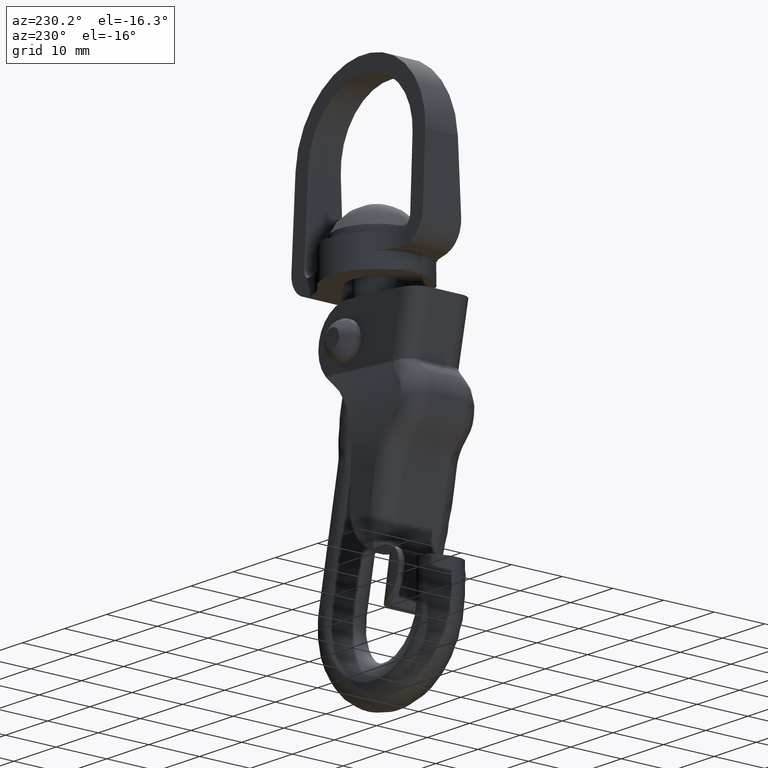
[diagram: clean part render]
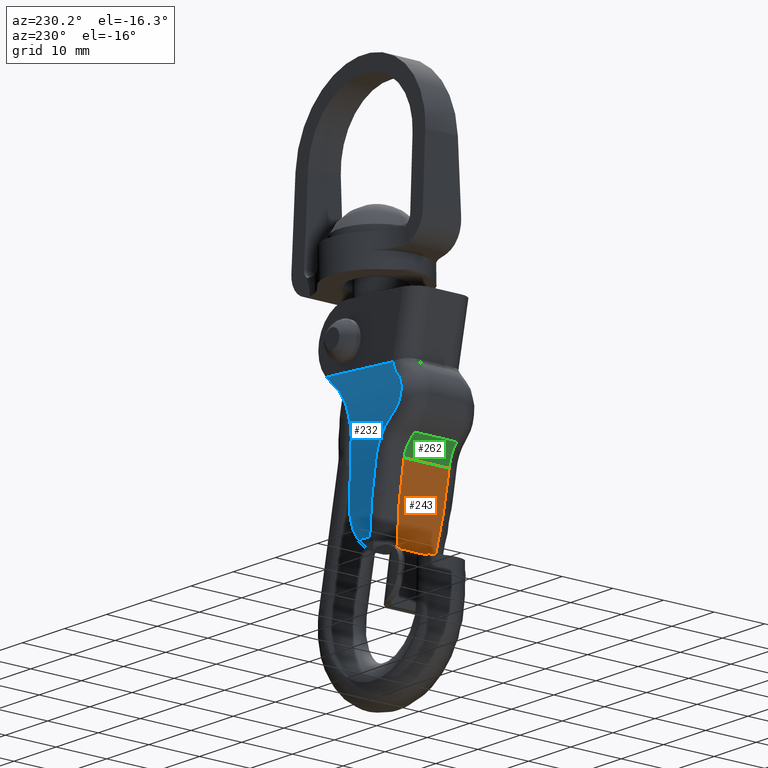
[diagram: same view with three faces highlighted in distinct colors, each labeled with its STEP entity id]
A machine part, auxiliary view with three faces highlighted in distinct colors.
Their STEP definitions:

[orange] entity #243 — the highlighted planar face has unit normal (0.9838, 0, 0.1795).
#243=ADVANCED_FACE('',(#1259),#1258,.F.);
#1258=PLANE('',#3210);
#1259=FACE_OUTER_BOUND('',#3211,.T.);
#3207=CARTESIAN_POINT('',(-1.33926840298E+01,-5.53585102927E+00,-1.84626691289E+01));
#3208=DIRECTION('',(9.93883734674E-01,-0.00000000000E+00,1.10431526075E-01));
#3209=DIRECTION('',(1.10431526075E-01,0.00000000000E+00,-9.93883734674E-01));
#3210=AXIS2_PLACEMENT_3D('',#3207,#3208,#3209);
#3211=EDGE_LOOP('',(#4421,#4422,#4423,#4424));
#4421=ORIENTED_EDGE('',*,*,#5106,.T.);
#4422=ORIENTED_EDGE('',*,*,#5036,.T.);
#4423=ORIENTED_EDGE('',*,*,#5107,.F.);
#4424=ORIENTED_EDGE('',*,*,#5108,.T.);
#5036=EDGE_CURVE('',#6873,#6866,#6874,.T.);
#5106=EDGE_CURVE('',#7349,#6873,#7350,.T.);
#5107=EDGE_CURVE('',#7356,#6866,#7357,.T.);
#5108=EDGE_CURVE('',#7356,#7349,#7363,.T.);
#6866=VERTEX_POINT('',#9564);
#6873=VERTEX_POINT('',#9569);
#6874=(BOUNDED_CURVE() B_SPLINE_CURVE(2,(#9570,#9571,#9572),.UNSPECIFIED.,.F.,.F.) B_SPLINE_CURVE_WITH_KNOTS((3,3),(1.44879891986E+00,1.59329488506E+00),.UNSPECIFIED.) CURVE() GEOMETRIC_REPRESENTATION_ITEM() RATIONAL_B_SPLINE_CURVE((1.00000000000E+00,9.97391249558E-01,1.00000000000E+00)) REPRESENTATION_ITEM('') );
#7349=VERTEX_POINT('',#10073);
#7350=LINE('',#10074,#10075);
#7356=VERTEX_POINT('',#10077);
#7357=LINE('',#10078,#10079);
#7363=(BOUNDED_CURVE() B_SPLINE_CURVE(2,(#10081,#10082,#10083),.UNSPECIFIED.,.F.,.F.) B_SPLINE_CURVE_WITH_KNOTS((3,3),(-1.59329488506E+00,-1.44879891986E+00),.UNSPECIFIED.) CURVE() GEOMETRIC_REPRESENTATION_ITEM() RATIONAL_B_SPLINE_CURVE((1.00000000000E+00,9.97391249558E-01,1.00000000000E+00)) REPRESENTATION_ITEM('') );
#9564=CARTESIAN_POINT('',(-1.32399392897E+01,-4.45798159360E+00,-1.98373717898E+01));
#9569=CARTESIAN_POINT('',(-1.17124918887E+01,-3.77351015019E+00,-3.35843983982E+01));
#9570=CARTESIAN_POINT('',(-1.17124918887E+01,-3.77351015019E+00,-3.35843983982E+01));
#9571=CARTESIAN_POINT('',(-1.24734634835E+01,-4.61320919106E+00,-2.67356540455E+01));
#9572=CARTESIAN_POINT('',(-1.32399392897E+01,-4.45798159360E+00,-1.98373717898E+01));
#10073=CARTESIAN_POINT('',(-1.17124918887E+01,3.77351015019E+00,-3.35843983982E+01));
#10074=CARTESIAN_POINT('',(-1.17124918887E+01,3.77351015019E+00,-3.35843983982E+01));
#10075=VECTOR('',#10076,7.54702030038E+00);
#10076=DIRECTION('',(0.00000000000E+00,-1.00000000000E+00,0.00000000000E+00));
#10077=CARTESIAN_POINT('',(-1.32399392897E+01,4.45798159360E+00,-1.98373717898E+01));
#10078=CARTESIAN_POINT('',(-1.32399392897E+01,4.45798159360E+00,-1.98373717898E+01));
#10079=VECTOR('',#10080,8.91596318720E+00);
#10080=DIRECTION('',(0.00000000000E+00,-1.00000000000E+00,0.00000000000E+00));
#10081=CARTESIAN_POINT('',(-1.32399392897E+01,4.45798159360E+00,-1.98373717898E+01));
#10082=CARTESIAN_POINT('',(-1.24734634835E+01,4.61320919106E+00,-2.67356540455E+01));
#10083=CARTESIAN_POINT('',(-1.17124918887E+01,3.77351015019E+00,-3.35843983982E+01));

[blue] entity #232 — the highlighted cylindrical surface (partial cylindrical patch) has radius 98.3386 mm, axis along (-0.9976, -0, -0.0698).
#232=ADVANCED_FACE('',(#1148),#1147,.T.);
#1147=CYLINDRICAL_SURFACE('',#3040,9.83385627829E+01);
#1148=FACE_OUTER_BOUND('',#3041,.T.);
#3037=CARTESIAN_POINT('',(-2.00000000000E+01,-9.08564527260E+01,-2.16508764665E+01));
#3038=DIRECTION('',(-1.00000000000E+00,-0.00000000000E+00,-0.00000000000E+00));
#3039=DIRECTION('',(-0.00000000000E+00,-0.00000000000E+00,1.00000000000E+00));
#3040=AXIS2_PLACEMENT_3D('',#3037,#3038,#3039);
#3041=EDGE_LOOP('',(#4366,#4367,#4368,#4369,#4370,#4371,#4372,#4373,#4374,#4375));
#4366=ORIENTED_EDGE('',*,*,#5059,.T.);
#4367=ORIENTED_EDGE('',*,*,#5060,.T.);
#4368=ORIENTED_EDGE('',*,*,#5061,.T.);
#4369=ORIENTED_EDGE('',*,*,#5062,.F.);
#4370=ORIENTED_EDGE('',*,*,#5063,.T.);
#4371=ORIENTED_EDGE('',*,*,#5064,.T.);
#4372=ORIENTED_EDGE('',*,*,#5065,.F.);
#4373=ORIENTED_EDGE('',*,*,#5066,.F.);
#4374=ORIENTED_EDGE('',*,*,#5067,.T.);
#4375=ORIENTED_EDGE('',*,*,#5068,.T.);
#5059=EDGE_CURVE('',#7028,#7029,#7030,.T.);
#5060=EDGE_CURVE('',#7029,#7036,#7037,.T.);
#5061=EDGE_CURVE('',#7036,#7043,#7044,.T.);
#5062=EDGE_CURVE('',#7050,#7043,#7051,.T.);
#5063=EDGE_CURVE('',#7050,#7057,#7058,.T.);
#5064=EDGE_CURVE('',#7057,#7064,#7065,.T.);
#5065=EDGE_CURVE('',#7071,#7064,#7072,.T.);
#5066=EDGE_CURVE('',#7078,#7071,#7079,.T.);
#5067=EDGE_CURVE('',#7078,#7085,#7086,.T.);
#5068=EDGE_CURVE('',#7085,#7028,#7092,.T.);
#7028=VERTEX_POINT('',#9758);
#7029=VERTEX_POINT('',#9759);
#7030=(BOUNDED_CURVE() B_SPLINE_CURVE(3,(#9760,#9761,#9762,#9763,#9764,#9765,#9766,#9767,#9768,#9769,#9770,#9771,#9772,#9773,#9774,#9775,#9776,#9777),.UNSPECIFIED.,.F.,.F.) B_SPLINE_CURVE_WITH_KNOTS((4,2,2,2,2,2,2,2,4),(7.35980840008E-18,9.33219614566E-04,1.86643922913E-03,2.79965884370E-03,3.73287845826E-03,4.66609807283E-03,5.59931768740E-03,6.53253730196E-03,7.46575691653E-03),.UNSPECIFIED.) CURVE() GEOMETRIC_REPRESENTATION_ITEM() RATIONAL_B_SPLINE_CURVE((1.00000000000E+00,1.00000000000E+00,1.00000000000E+00,1.00000000000E+00,1.00000000000E+00,1.00000000000E+00,1.00000000000E+00,1.00000000000E+00,1.00000000000E+00,1.00000000000E+00,1.00000000000E+00,1.00000000000E+00,1.00000000000E+00,1.00000000000E+00,1.00000000000E+00,1.00000000000E+00,1.00000000000E+00,1.00000000000E+00)) REPRESENTATION_ITEM('') );
#7036=VERTEX_POINT('',#9778);
#7037=(BOUNDED_CURVE() B_SPLINE_CURVE(3,(#9779,#9780,#9781,#9782,#9783,#9784,#9785,#9786),.UNSPECIFIED.,.F.,.F.) B_SPLINE_CURVE_WITH_KNOTS((4,2,2,4),(0.00000000000E+00,6.79578231446E-04,1.35915646289E-03,2.71831292578E-03),.UNSPECIFIED.) CURVE() GEOMETRIC_REPRESENTATION_ITEM() RATIONAL_B_SPLINE_CURVE((1.00000000000E+00,1.00000000000E+00,1.00000000000E+00,1.00000000000E+00,1.00000000000E+00,1.00000000000E+00,1.00000000000E+00,1.00000000000E+00)) REPRESENTATION_ITEM('') );
#7043=VERTEX_POINT('',#9787);
#7044=LINE('',#9788,#9789);
#7050=VERTEX_POINT('',#9791);
#7051=(BOUNDED_CURVE() B_SPLINE_CURVE(3,(#9792,#9793,#9794,#9795),.UNSPECIFIED.,.F.,.F.) B_SPLINE_CURVE_WITH_KNOTS((4,4),(0.00000000000E+00,1.45892270199E-03),.UNSPECIFIED.) CURVE() GEOMETRIC_REPRESENTATION_ITEM() RATIONAL_B_SPLINE_CURVE((1.00000000000E+00,1.00000000000E+00,1.00000000000E+00,1.00000000000E+00)) REPRESENTATION_ITEM('') );
#7057=VERTEX_POINT('',#9796);
#7058=(BOUNDED_CURVE() B_SPLINE_CURVE(3,(#9797,#9798,#9799,#9800,#9801,#9802,#9803,#9804,#9805,#9806,#9807,#9808,#9809,#9810,#9811,#9812),.UNSPECIFIED.,.F.,.F.) B_SPLINE_CURVE_WITH_KNOTS((4,2,2,2,2,2,2,4),(2.19469944455E-17,3.76839024051E-03,5.65258536077E-03,7.53678048102E-03,9.42097560128E-03,1.03630731614E-02,1.13051707215E-02,1.50735609620E-02),.UNSPECIFIED.) CURVE() GEOMETRIC_REPRESENTATION_ITEM() RATIONAL_B_SPLINE_CURVE((1.00000000000E+00,1.00000000000E+00,1.00000000000E+00,1.00000000000E+00,1.00000000000E+00,1.00000000000E+00,1.00000000000E+00,1.00000000000E+00,1.00000000000E+00,1.00000000000E+00,1.00000000000E+00,1.00000000000E+00,1.00000000000E+00,1.00000000000E+00,1.00000000000E+00,1.00000000000E+00)) REPRESENTATION_ITEM('') );
#7064=VERTEX_POINT('',#9813);
#7065=(BOUNDED_CURVE() B_SPLINE_CURVE(2,(#9814,#9815,#9816),.UNSPECIFIED.,.F.,.F.) B_SPLINE_CURVE_WITH_KNOTS((3,3),(1.53512451064E+00,1.62346856698E+00),.UNSPECIFIED.) CURVE() GEOMETRIC_REPRESENTATION_ITEM() RATIONAL_B_SPLINE_CURVE((1.00000000000E+00,9.99024574581E-01,1.00000000000E+00)) REPRESENTATION_ITEM('') );
#7071=VERTEX_POINT('',#9817);
#7072=(BOUNDED_CURVE() B_SPLINE_CURVE(3,(#9818,#9819,#9820,#9821,#9822,#9823),.UNSPECIFIED.,.F.,.F.) B_SPLINE_CURVE_WITH_KNOTS((4,2,4),(0.00000000000E+00,2.82610905719E-03,5.65221811437E-03),.UNSPECIFIED.) CURVE() GEOMETRIC_REPRESENTATION_ITEM() RATIONAL_B_SPLINE_CURVE((1.00000000000E+00,1.00000000000E+00,1.00000000000E+00,1.00000000000E+00,1.00000000000E+00,1.00000000000E+00)) REPRESENTATION_ITEM('') );
#7078=VERTEX_POINT('',#9824);
#7079=LINE('',#9825,#9826);
#7085=VERTEX_POINT('',#9828);
#7086=(BOUNDED_CURVE() B_SPLINE_CURVE(2,(#9829,#9830,#9831),.UNSPECIFIED.,.F.,.F.) B_SPLINE_CURVE_WITH_KNOTS((3,3),(1.46510165804E+00,1.59329488506E+00),.UNSPECIFIED.) CURVE() GEOMETRIC_REPRESENTATION_ITEM() RATIONAL_B_SPLINE_CURVE((1.00000000000E+00,9.97946515253E-01,1.00000000000E+00)) REPRESENTATION_ITEM('') );
#7092=(BOUNDED_CURVE() B_SPLINE_CURVE(3,(#9832,#9833,#9834,#9835,#9836,#9837,#9838,#9839,#9840,#9841,#9842,#9843),.UNSPECIFIED.,.F.,.F.) B_SPLINE_CURVE_WITH_KNOTS((4,2,2,2,2,4),(3.46944695195E-18,1.69884318975E-03,3.39768637950E-03,4.24710797437E-03,5.09652956924E-03,6.79537275899E-03),.UNSPECIFIED.) CURVE() GEOMETRIC_REPRESENTATION_ITEM() RATIONAL_B_SPLINE_CURVE((1.00000000000E+00,1.00000000000E+00,1.00000000000E+00,1.00000000000E+00,1.00000000000E+00,1.00000000000E+00,1.00000000000E+00,1.00000000000E+00,1.00000000000E+00,1.00000000000E+00,1.00000000000E+00,1.00000000000E+00)) REPRESENTATION_ITEM('') );
#9758=CARTESIAN_POINT('',(-1.32568111381E+01,7.14999903297E+00,-1.35757081200E+01));
#9759=CARTESIAN_POINT('',(-1.30794218449E+01,6.39982852946E+00,-7.10135116275E+00));
#9760=CARTESIAN_POINT('',(-1.32568111381E+01,7.14999903297E+00,-1.35757081200E+01));
#9761=CARTESIAN_POINT('',(-1.34892987140E+01,7.13299589238E+00,-1.33693449328E+01));
#9762=CARTESIAN_POINT('',(-1.36969880729E+01,7.11319459328E+00,-1.31371399317E+01));
#9763=CARTESIAN_POINT('',(-1.40529316073E+01,7.06861300105E+00,-1.26388285305E+01));
#9764=CARTESIAN_POINT('',(-1.42040762753E+01,7.04349931282E+00,-1.23689665981E+01));
#9765=CARTESIAN_POINT('',(-1.44450468499E+01,6.98794742940E+00,-1.18006065090E+01));
#9766=CARTESIAN_POINT('',(-1.45330019229E+01,6.95808880607E+00,-1.15078998580E+01));
#9767=CARTESIAN_POINT('',(-1.46461089887E+01,6.89381009427E+00,-1.09060810670E+01));
#9768=CARTESIAN_POINT('',(-1.46704387340E+01,6.85916378999E+00,-1.05953107683E+01));
#9769=CARTESIAN_POINT('',(-1.46530522226E+01,6.78820673116E+00,-9.98521216893E+00));
#9770=CARTESIAN_POINT('',(-1.46121282071E+01,6.75143446700E+00,-9.68156829700E+00));
#9771=CARTESIAN_POINT('',(-1.44641551054E+01,6.67614316218E+00,-9.08279309429E+00));
#9772=CARTESIAN_POINT('',(-1.43594383237E+01,6.63871946669E+00,-8.79627775084E+00));
#9773=CARTESIAN_POINT('',(-1.40895436257E+01,6.56492777903E+00,-8.24849124907E+00));
#9774=CARTESIAN_POINT('',(-1.39221288116E+01,6.52827575982E+00,-7.98539581125E+00));
#9775=CARTESIAN_POINT('',(-1.35390858465E+01,6.46030960588E+00,-7.50950195636E+00));
#9776=CARTESIAN_POINT('',(-1.33225983659E+01,6.42859679124E+00,-7.29365256778E+00));
#9777=CARTESIAN_POINT('',(-1.30794218449E+01,6.39982852946E+00,-7.10135116275E+00));
#9778=CARTESIAN_POINT('',(-1.16142213785E+01,6.04231554477E+00,-4.88479052455E+00));
#9779=CARTESIAN_POINT('',(-1.30794218449E+01,6.39982852946E+00,-7.10135116275E+00));
#9780=CARTESIAN_POINT('',(-1.29004825822E+01,6.37865966196E+00,-6.95984789799E+00));
#9781=CARTESIAN_POINT('',(-1.27354657477E+01,6.35527964343E+00,-6.80566546123E+00));
#9782=CARTESIAN_POINT('',(-1.24318138670E+01,6.30394761525E+00,-6.47333366193E+00));
#9783=CARTESIAN_POINT('',(-1.22925094517E+01,6.27582629344E+00,-6.29412025258E+00));
#9784=CARTESIAN_POINT('',(-1.19197032715E+01,6.18502344188E+00,-5.72694892836E+00));
#9785=CARTESIAN_POINT('',(-1.17355772977E+01,6.11759807030E+00,-5.31988217450E+00));
#9786=CARTESIAN_POINT('',(-1.16142213785E+01,6.04231554477E+00,-4.88479052455E+00));
#9787=CARTESIAN_POINT('',(4.44305484675E+00,6.04231554477E+00,-4.88479052455E+00));
#9788=CARTESIAN_POINT('',(-1.16142213785E+01,6.04231554477E+00,-4.88479052455E+00));
#9789=VECTOR('',#9790,1.60572762252E+01);
#9790=DIRECTION('',(1.00000000000E+00,0.00000000000E+00,0.00000000000E+00));
#9791=CARTESIAN_POINT('',(3.26599291079E+00,6.18623158464E+00,-5.73892020738E+00));
#9792=CARTESIAN_POINT('',(3.26599291079E+00,6.18623158464E+00,-5.73892020738E+00));
#9793=CARTESIAN_POINT('',(3.69340577094E+00,6.14634807099E+00,-5.49568152819E+00));
#9794=CARTESIAN_POINT('',(4.08521909087E+00,6.09863168680E+00,-5.21026689483E+00));
#9795=CARTESIAN_POINT('',(4.44305484675E+00,6.04231554477E+00,-4.88479052455E+00));
#9796=CARTESIAN_POINT('',(-4.08351289218E+00,7.41954983936E+00,-1.81437052446E+01));
#9797=CARTESIAN_POINT('',(3.26599291079E+00,6.18623158464E+00,-5.73892020738E+00));
#9798=CARTESIAN_POINT('',(2.16209882213E+00,6.28924012521E+00,-6.36714122067E+00));
#9799=CARTESIAN_POINT('',(1.16457753165E+00,6.40710784974E+00,-7.12292985484E+00));
#9800=CARTESIAN_POINT('',(-1.78741680477E-01,6.59197511020E+00,-8.44201686159E+00));
#9801=CARTESIAN_POINT('',(-6.03309016630E-01,6.65541982281E+00,-8.91678546239E+00));
#9802=CARTESIAN_POINT('',(-1.37949899913E+00,6.77973136925E+00,-9.90788208712E+00));
#9803=CARTESIAN_POINT('',(-1.73264094116E+00,6.84073427738E+00,-1.04247738006E+01));
#9804=CARTESIAN_POINT('',(-2.37048549911E+00,6.95835819379E+00,-1.15005811917E+01));
#9805=CARTESIAN_POINT('',(-2.65519090386E+00,7.01498521464E+00,-1.20594945176E+01));
#9806=CARTESIAN_POINT('',(-3.02933115391E+00,7.09513316688E+00,-1.29305116926E+01));
#9807=CARTESIAN_POINT('',(-3.14536721242E+00,7.12109856235E+00,-1.32270080344E+01));
#9808=CARTESIAN_POINT('',(-3.35619673748E+00,7.17045499197E+00,-1.38222444613E+01));
#9809=CARTESIAN_POINT('',(-3.45145912921E+00,7.19394162752E+00,-1.41219552645E+01));
#9810=CARTESIAN_POINT('',(-3.87804239223E+00,7.30513006988E+00,-1.56307844865E+01));
#9811=CARTESIAN_POINT('',(-4.06272406464E+00,7.37410308995E+00,-1.68702216936E+01));
#9812=CARTESIAN_POINT('',(-4.08351289218E+00,7.41954983936E+00,-1.81437052446E+01));
#9813=CARTESIAN_POINT('',(-4.22528177603E+00,7.34572806463E+00,-2.68281941283E+01));
#9814=CARTESIAN_POINT('',(-4.08351289218E+00,7.41954983936E+00,-1.81437052446E+01));
#9815=CARTESIAN_POINT('',(-4.15442396716E+00,7.57456954165E+00,-2.24875811764E+01));
#9816=CARTESIAN_POINT('',(-4.22528177603E+00,7.34572806463E+00,-2.68281941283E+01));
#9817=CARTESIAN_POINT('',(-6.17747107670E+00,6.93333333333E+00,-3.20253968254E+01));
#9818=CARTESIAN_POINT('',(-6.17747107670E+00,6.93333333333E+00,-3.20253968254E+01));
#9819=CARTESIAN_POINT('',(-5.56220561664E+00,7.01046635818E+00,-3.12983442257E+01));
#9820=CARTESIAN_POINT('',(-5.08619996870E+00,7.08837543748E+00,-3.04873388137E+01));
#9821=CARTESIAN_POINT('',(-4.41660215823E+00,7.23286032276E+00,-2.87048892541E+01));
#9822=CARTESIAN_POINT('',(-4.24085823984E+00,7.29542251548E+00,-2.77823783131E+01));
#9823=CARTESIAN_POINT('',(-4.22528177603E+00,7.34572806463E+00,-2.68281941283E+01));
#9824=CARTESIAN_POINT('',(-8.90241856847E+00,6.93333333333E+00,-3.20253968254E+01));
#9825=CARTESIAN_POINT('',(-8.90241856847E+00,6.93333333333E+00,-3.20253968254E+01));
#9826=VECTOR('',#9827,2.72494749178E+00);
#9827=DIRECTION('',(1.00000000000E+00,0.00000000000E+00,0.00000000000E+00));
#9828=CARTESIAN_POINT('',(-1.02582880857E+01,7.45722234794E+00,-1.94385872308E+01));
#9829=CARTESIAN_POINT('',(-8.90241856847E+00,6.93333333333E+00,-3.20253968254E+01));
#9830=CARTESIAN_POINT('',(-9.57854222913E+00,7.59921710528E+00,-2.57488048147E+01));
#9831=CARTESIAN_POINT('',(-1.02582880857E+01,7.45722234794E+00,-1.94385872308E+01));
#9832=CARTESIAN_POINT('',(-1.02582880857E+01,7.45722234794E+00,-1.94385872308E+01));
#9833=CARTESIAN_POINT('',(-1.03189622270E+01,7.44454789043E+00,-1.88753369663E+01));
#9834=CARTESIAN_POINT('',(-1.04312853452E+01,7.42709902920E+00,-1.83185615461E+01));
#9835=CARTESIAN_POINT('',(-1.07503112963E+01,7.38488098219E+00,-1.72461949137E+01));
#9836=CARTESIAN_POINT('',(-1.09571224598E+01,7.36005144561E+00,-1.67271064566E+01));
#9837=CARTESIAN_POINT('',(-1.13404985059E+01,7.31848680803E+00,-1.59748526958E+01));
#9838=CARTESIAN_POINT('',(-1.14810121301E+01,7.30387494657E+00,-1.57280783115E+01));
#9839=CARTESIAN_POINT('',(-1.17812527554E+01,7.27408573648E+00,-1.52534638774E+01));
#9840=CARTESIAN_POINT('',(-1.19415539015E+01,7.25884258801E+00,-1.50243510064E+01));
#9841=CARTESIAN_POINT('',(-1.24526960322E+01,7.21256168207E+00,-1.43613168551E+01));
#9842=CARTESIAN_POINT('',(-1.28334837371E+01,7.18095937692E+00,-1.39514666586E+01));
#9843=CARTESIAN_POINT('',(-1.32568111381E+01,7.14999903297E+00,-1.35757081200E+01));

[green] entity #262 — the highlighted cylindrical surface (partial cylindrical patch) has radius 5.7778 mm, axis along (0, 1, 0).
#262=ADVANCED_FACE('',(#1451),#1450,.F.);
#1450=CYLINDRICAL_SURFACE('',#3373,5.77777777778E+00);
#1451=FACE_OUTER_BOUND('',#3374,.T.);
#3370=CARTESIAN_POINT('',(-1.89823786456E+01,1.00000000000E+01,-2.04754206071E+01));
#3371=DIRECTION('',(-0.00000000000E+00,1.00000000000E+00,0.00000000000E+00));
#3372=DIRECTION('',(-0.00000000000E+00,-0.00000000000E+00,1.00000000000E+00));
#3373=AXIS2_PLACEMENT_3D('',#3370,#3371,#3372);
#3374=EDGE_LOOP('',(#4532,#4533,#4534,#4535));
#4532=ORIENTED_EDGE('',*,*,#5107,.T.);
#4533=ORIENTED_EDGE('',*,*,#5158,.T.);
#4534=ORIENTED_EDGE('',*,*,#5159,.F.);
#4535=ORIENTED_EDGE('',*,*,#5160,.T.);
#5107=EDGE_CURVE('',#7356,#6866,#7357,.T.);
#5158=EDGE_CURVE('',#6866,#7688,#7689,.T.);
#5159=EDGE_CURVE('',#7695,#7688,#7696,.T.);
#5160=EDGE_CURVE('',#7695,#7356,#7702,.T.);
#6866=VERTEX_POINT('',#9564);
#7356=VERTEX_POINT('',#10077);
#7357=LINE('',#10078,#10079);
#7688=VERTEX_POINT('',#10328);
#7689=(BOUNDED_CURVE() B_SPLINE_CURVE(3,(#10329,#10330,#10331,#10332,#10333,#10334,#10335,#10336,#10337,#10338,#10339,#10340),.UNSPECIFIED.,.F.,.F.) B_SPLINE_CURVE_WITH_KNOTS((4,2,2,2,2,4),(7.15244812269E-18,1.07916453611E-03,1.61874680417E-03,2.15832907222E-03,3.23749360834E-03,4.31665814445E-03),.UNSPECIFIED.) CURVE() GEOMETRIC_REPRESENTATION_ITEM() RATIONAL_B_SPLINE_CURVE((1.00000000000E+00,1.00000000000E+00,1.00000000000E+00,1.00000000000E+00,1.00000000000E+00,1.00000000000E+00,1.00000000000E+00,1.00000000000E+00,1.00000000000E+00,1.00000000000E+00,1.00000000000E+00,1.00000000000E+00)) REPRESENTATION_ITEM('') );
#7695=VERTEX_POINT('',#10341);
#7696=LINE('',#10342,#10343);
#7702=(BOUNDED_CURVE() B_SPLINE_CURVE(3,(#10345,#10346,#10347,#10348,#10349,#10350,#10351,#10352,#10353,#10354,#10355,#10356),.UNSPECIFIED.,.F.,.F.) B_SPLINE_CURVE_WITH_KNOTS((4,2,2,2,2,4),(3.87895961445E-18,1.07931246952E-03,1.61896870428E-03,2.15862493904E-03,3.23793740857E-03,4.31724987809E-03),.UNSPECIFIED.) CURVE() GEOMETRIC_REPRESENTATION_ITEM() RATIONAL_B_SPLINE_CURVE((1.00000000000E+00,1.00000000000E+00,1.00000000000E+00,1.00000000000E+00,1.00000000000E+00,1.00000000000E+00,1.00000000000E+00,1.00000000000E+00,1.00000000000E+00,1.00000000000E+00,1.00000000000E+00,1.00000000000E+00)) REPRESENTATION_ITEM('') );
#9564=CARTESIAN_POINT('',(-1.32399392897E+01,-4.45798159360E+00,-1.98373717898E+01));
#10077=CARTESIAN_POINT('',(-1.32399392897E+01,4.45798159360E+00,-1.98373717898E+01));
#10078=CARTESIAN_POINT('',(-1.32399392897E+01,4.45798159360E+00,-1.98373717898E+01));
#10079=VECTOR('',#10080,8.91596318720E+00);
#10080=DIRECTION('',(0.00000000000E+00,-1.00000000000E+00,0.00000000000E+00));
#10328=CARTESIAN_POINT('',(-1.52136506660E+01,-4.16013069489E+00,-1.60959907966E+01));
#10329=CARTESIAN_POINT('',(-1.32399392897E+01,-4.45798159360E+00,-1.98373717898E+01));
#10330=CARTESIAN_POINT('',(-1.32802190552E+01,-4.44558845902E+00,-1.94748539004E+01));
#10331=CARTESIAN_POINT('',(-1.33538449019E+01,-4.42876234865E+00,-1.91221475815E+01));
#10332=CARTESIAN_POINT('',(-1.35120623213E+01,-4.39793616122E+00,-1.86071028222E+01));
#10333=CARTESIAN_POINT('',(-1.35728197754E+01,-4.38672875728E+00,-1.84377728967E+01));
#10334=CARTESIAN_POINT('',(-1.37106468998E+01,-4.36262755819E+00,-1.81038852895E+01));
#10335=CARTESIAN_POINT('',(-1.37881913820E+01,-4.34966054904E+00,-1.79385192332E+01));
#10336=CARTESIAN_POINT('',(-1.40415438052E+01,-4.30926724983E+00,-1.74585012230E+01));
#10337=CARTESIAN_POINT('',(-1.42380979285E+01,-4.28028466495E+00,-1.71582720756E+01));
#10338=CARTESIAN_POINT('',(-1.46853669380E+01,-4.22066451703E+00,-1.65963273771E+01));
#10339=CARTESIAN_POINT('',(-1.49379772003E+01,-4.18982634615E+00,-1.63332222053E+01));
#10340=CARTESIAN_POINT('',(-1.52136506660E+01,-4.16013069489E+00,-1.60959907966E+01));
#10341=CARTESIAN_POINT('',(-1.52136506660E+01,4.16013069489E+00,-1.60959907966E+01));
#10342=CARTESIAN_POINT('',(-1.52136506660E+01,4.16013069489E+00,-1.60959907966E+01));
#10343=VECTOR('',#10344,8.32026138977E+00);
#10344=DIRECTION('',(0.00000000000E+00,-1.00000000000E+00,0.00000000000E+00));
#10345=CARTESIAN_POINT('',(-1.52136506660E+01,4.16013069489E+00,-1.60959907966E+01));
#10346=CARTESIAN_POINT('',(-1.49379649163E+01,4.18982766938E+00,-1.63332327763E+01));
#10347=CARTESIAN_POINT('',(-1.46889153373E+01,4.22022185179E+00,-1.65924475366E+01));
#10348=CARTESIAN_POINT('',(-1.43535219012E+01,4.26488405584E+00,-1.70129721904E+01));
#10349=CARTESIAN_POINT('',(-1.42481320363E+01,4.27961915307E+00,-1.71584673548E+01));
#10350=CARTESIAN_POINT('',(-1.40503966388E+01,4.30846620424E+00,-1.74603213849E+01));
#10351=CARTESIAN_POINT('',(-1.39576429531E+01,4.32264641139E+00,-1.76175386160E+01));
#10352=CARTESIAN_POINT('',(-1.37041676524E+01,4.36305209097E+00,-1.80975699851E+01));
#10353=CARTESIAN_POINT('',(-1.35669960938E+01,4.38726080623E+00,-1.84295189360E+01));
#10354=CARTESIAN_POINT('',(-1.33550687529E+01,4.42849671252E+00,-1.91169416040E+01));
#10355=CARTESIAN_POINT('',(-1.32802199142E+01,4.44558819470E+00,-1.94748461687E+01));
#10356=CARTESIAN_POINT('',(-1.32399392897E+01,4.45798159360E+00,-1.98373717898E+01));